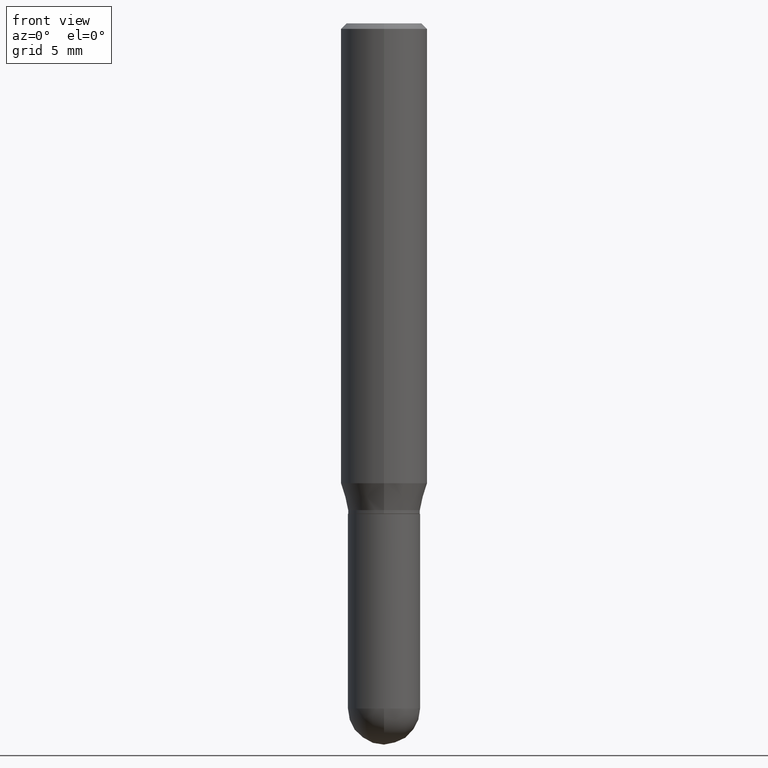
[diagram: clean part render]
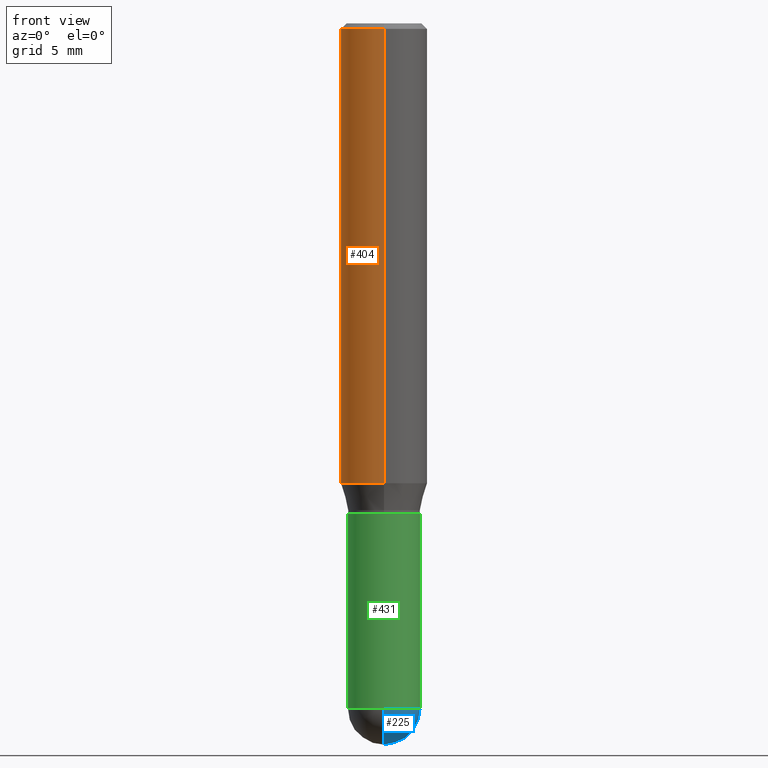
[diagram: same view with three faces highlighted in distinct colors, each labeled with its STEP entity id]
A machine part, front view with three faces highlighted in distinct colors.
Their STEP definitions:

[orange] entity #404 — the highlighted cylindrical surface (partial cylindrical patch) has radius 2.9997 mm, axis along (-0, 0, 1).
#8 = EDGE_CURVE ( 'NONE', #118, #463, #145, .T. ) ;
#61 = ORIENTED_EDGE ( 'NONE', *, *, #124, .F. ) ;
#95 = AXIS2_PLACEMENT_3D ( 'NONE', #200, #280, #286 ) ;
#99 = VERTEX_POINT ( 'NONE', #153 ) ;
#100 = CARTESIAN_POINT ( 'NONE',  ( -8.246878922347475723E-16, -0.1181000000000000522, -0.01499999999999973056 ) ) ;
#118 = VERTEX_POINT ( 'NONE', #462 ) ;
#120 = CARTESIAN_POINT ( 'NONE',  ( 8.391509709326781971E-16, 0.1180999999999999966, -4.123703489917239120E-16 ) ) ;
#122 = CYLINDRICAL_SURFACE ( 'NONE', #95, 0.1180999999999999966 ) ;
#124 = EDGE_CURVE ( 'NONE', #247, #99, #425, .T. ) ;
#125 = FACE_OUTER_BOUND ( 'NONE', #344, .T. ) ;
#129 = EDGE_CURVE ( 'NONE', #99, #463, #271, .T. ) ;
#130 = CARTESIAN_POINT ( 'NONE',  ( 3.069515929976998063E-29, -4.383015658542372764E-15, -1.255265201631271754 ) ) ;
#145 = LINE ( 'NONE', #305, #510 ) ;
#151 = DIRECTION ( 'NONE',  ( -2.445312692479667883E-29, 3.491704902554816982E-15, 1.000000000000000000 ) ) ;
#153 = CARTESIAN_POINT ( 'NONE',  ( 8.391509709327091599E-16, 0.1180999999999999411, -0.01500000000000055456 ) ) ;
#180 = DIRECTION ( 'NONE',  ( -2.445312692479667883E-29, 3.491704902554816982E-15, 1.000000000000000000 ) ) ;
#200 = CARTESIAN_POINT ( 'NONE',  ( 0.000000000000000000, 0.000000000000000000, 0.000000000000000000 ) ) ;
#219 = VECTOR ( 'NONE', #468, 39.37007874015748143 ) ;
#245 = DIRECTION ( 'NONE',  ( -2.445312692479667883E-29, 3.491704902554816982E-15, 1.000000000000000000 ) ) ;
#247 = VERTEX_POINT ( 'NONE', #362 ) ;
#252 = ORIENTED_EDGE ( 'NONE', *, *, #129, .F. ) ;
#271 = CIRCLE ( 'NONE', #360, 0.1180999999999999966 ) ;
#280 = DIRECTION ( 'NONE',  ( -2.445312692479667883E-29, 3.491704902554816982E-15, 1.000000000000000000 ) ) ;
#286 = DIRECTION ( 'NONE',  ( -6.982962677686265922E-15, -1.000000000000000000, 3.491704902554817376E-15 ) ) ;
#305 = CARTESIAN_POINT ( 'NONE',  ( -8.246878922347479668E-16, -0.1180999999999999966, 4.123703489917239120E-16 ) ) ;
#325 = EDGE_CURVE ( 'NONE', #247, #118, #399, .T. ) ;
#338 = AXIS2_PLACEMENT_3D ( 'NONE', #130, #245, #400 ) ;
#340 = ORIENTED_EDGE ( 'NONE', *, *, #8, .T. ) ;
#344 = EDGE_LOOP ( 'NONE', ( #61, #422, #340, #252 ) ) ;
#360 = AXIS2_PLACEMENT_3D ( 'NONE', #466, #151, #394 ) ;
#362 = CARTESIAN_POINT ( 'NONE',  ( 8.391509709327087654E-16, 0.1180999999999955974, -1.255265201631272420 ) ) ;
#394 = DIRECTION ( 'NONE',  ( -6.982962677686265922E-15, -1.000000000000000000, 3.487819265831411744E-15 ) ) ;
#399 = CIRCLE ( 'NONE', #338, 0.1180999999999999966 ) ;
#400 = DIRECTION ( 'NONE',  ( -6.982962677686265922E-15, -1.000000000000000000, 4.626330217890369336E-15 ) ) ;
#404 = ADVANCED_FACE ( 'NONE', ( #125 ), #122, .T. ) ;
#422 = ORIENTED_EDGE ( 'NONE', *, *, #325, .T. ) ;
#425 = LINE ( 'NONE', #120, #219 ) ;
#462 = CARTESIAN_POINT ( 'NONE',  ( -8.246878922347173984E-16, -0.1181000000000044098, -1.255265201631271310 ) ) ;
#463 = VERTEX_POINT ( 'NONE', #100 ) ;
#466 = CARTESIAN_POINT ( 'NONE',  ( 3.667969038719537049E-31, -5.237557353832276132E-17, -0.01500000000000014343 ) ) ;
#468 = DIRECTION ( 'NONE',  ( -2.445312692479667883E-29, 3.491704902554816982E-15, 1.000000000000000000 ) ) ;
#510 = VECTOR ( 'NONE', #180, 39.37007874015748143 ) ;

[blue] entity #225 — the highlighted spherical surface has radius 2.5006 mm.
#4 = VERTEX_POINT ( 'NONE', #377 ) ;
#12 = EDGE_CURVE ( 'NONE', #304, #364, #294, .T. ) ;
#13 = AXIS2_PLACEMENT_3D ( 'NONE', #268, #69, #491 ) ;
#18 = DIRECTION ( 'NONE',  ( -2.445468806185136597E-29, 3.491481338843145583E-15, 1.000000000000000000 ) ) ;
#48 = DIRECTION ( 'NONE',  ( 6.982962677686265922E-15, 1.000000000000000000, 0.000000000000000000 ) ) ;
#52 = EDGE_CURVE ( 'NONE', #498, #4, #464, .T. ) ;
#69 = DIRECTION ( 'NONE',  ( -1.000000000000000000, 7.105427357601001070E-15, -4.926315508542082329E-29 ) ) ;
#70 = AXIS2_PLACEMENT_3D ( 'NONE', #303, #18, #339 ) ;
#72 = ORIENTED_EDGE ( 'NONE', *, *, #346, .T. ) ;
#127 = CARTESIAN_POINT ( 'NONE',  ( 4.564729828889544053E-29, -6.541301325441230978E-15, -1.870050000000000212 ) ) ;
#128 = AXIS2_PLACEMENT_3D ( 'NONE', #127, #170, #48 ) ;
#137 = CIRCLE ( 'NONE', #156, 0.09844999999999999585 ) ;
#156 = AXIS2_PLACEMENT_3D ( 'NONE', #363, #171, #330 ) ;
#157 = FACE_OUTER_BOUND ( 'NONE', #301, .T. ) ;
#170 = DIRECTION ( 'NONE',  ( 1.000000000000000000, -6.982962677686265922E-15, 4.883557194083112340E-29 ) ) ;
#171 = DIRECTION ( 'NONE',  ( -2.445468806185136597E-29, 3.491481338843145583E-15, 1.000000000000000000 ) ) ;
#210 = CARTESIAN_POINT ( 'NONE',  ( 0.09844999999999999585, -6.288943474557743431E-15, -1.870050000000000212 ) ) ;
#225 = ADVANCED_FACE ( 'NONE', ( #157 ), #502, .T. ) ;
#230 = DIRECTION ( 'NONE',  ( -1.000000000000000000, 6.982962677686265922E-15, -4.883557194083112340E-29 ) ) ;
#264 = ORIENTED_EDGE ( 'NONE', *, *, #353, .F. ) ;
#267 = ORIENTED_EDGE ( 'NONE', *, *, #52, .F. ) ;
#268 = CARTESIAN_POINT ( 'NONE',  ( 4.564729828889544053E-29, -6.541301325441230978E-15, -1.870050000000000212 ) ) ;
#285 = DIRECTION ( 'NONE',  ( 6.982962677686265922E-15, 1.000000000000000000, -2.774858297271980348E-15 ) ) ;
#294 = CIRCLE ( 'NONE', #70, 0.09844999999999999585 ) ;
#301 = EDGE_LOOP ( 'NONE', ( #267, #72, #473, #264 ) ) ;
#303 = CARTESIAN_POINT ( 'NONE',  ( 4.573148941006514739E-29, -6.529244677703625427E-15, -1.870050000000000212 ) ) ;
#304 = VERTEX_POINT ( 'NONE', #210 ) ;
#311 = CARTESIAN_POINT ( 'NONE',  ( 4.564729828889544053E-29, -6.541301325441230978E-15, -1.870050000000000212 ) ) ;
#330 = DIRECTION ( 'NONE',  ( 1.000000000000000000, -6.982962677686265922E-15, 0.000000000000000000 ) ) ;
#339 = DIRECTION ( 'NONE',  ( 1.000000000000000000, -6.982962677686265922E-15, 0.000000000000000000 ) ) ;
#346 = EDGE_CURVE ( 'NONE', #498, #364, #493, .T. ) ;
#353 = EDGE_CURVE ( 'NONE', #4, #304, #137, .T. ) ;
#354 = AXIS2_PLACEMENT_3D ( 'NONE', #311, #230, #285 ) ;
#363 = CARTESIAN_POINT ( 'NONE',  ( 4.573148941006514739E-29, -6.529244677703625427E-15, -1.870050000000000212 ) ) ;
#364 = VERTEX_POINT ( 'NONE', #405 ) ;
#377 = CARTESIAN_POINT ( 'NONE',  ( -6.995293233557726523E-16, -0.09845000000000650453, -1.870049999999999990 ) ) ;
#405 = CARTESIAN_POINT ( 'NONE',  ( 6.874726756182583140E-16, 0.09844999999999343165, -1.870050000000000434 ) ) ;
#464 = CIRCLE ( 'NONE', #13, 0.09844999999999994034 ) ;
#473 = ORIENTED_EDGE ( 'NONE', *, *, #12, .F. ) ;
#490 = CARTESIAN_POINT ( 'NONE',  ( 4.809695788916955932E-29, -6.879009339381536060E-15, -1.968500000000000139 ) ) ;
#491 = DIRECTION ( 'NONE',  ( -7.105427357601001070E-15, -1.000000000000000000, 0.000000000000000000 ) ) ;
#493 = CIRCLE ( 'NONE', #128, 0.09844999999999994034 ) ;
#498 = VERTEX_POINT ( 'NONE', #490 ) ;
#502 = SPHERICAL_SURFACE ( 'NONE', #354, 0.09844999999999994034 ) ;

[green] entity #431 — the highlighted cylindrical surface (edge-blend (fillet) strip) has radius 2.5006 mm, axis along (-0, 0, 1).
#4 = VERTEX_POINT ( 'NONE', #377 ) ;
#9 = CARTESIAN_POINT ( 'NONE',  ( 0.09844999999999999585, -6.874726756182129545E-16, 4.800596035771099214E-30 ) ) ;
#20 = VERTEX_POINT ( 'NONE', #300 ) ;
#45 = CIRCLE ( 'NONE', #482, 0.09844999999999999585 ) ;
#60 = DIRECTION ( 'NONE',  ( -2.445468806185136597E-29, 3.491481338843145583E-15, 1.000000000000000000 ) ) ;
#66 = ORIENTED_EDGE ( 'NONE', *, *, #353, .T. ) ;
#86 = ORIENTED_EDGE ( 'NONE', *, *, #231, .T. ) ;
#90 = CYLINDRICAL_SURFACE ( 'NONE', #407, 0.09844999999999999585 ) ;
#98 = DIRECTION ( 'NONE',  ( -2.445468806185136877E-29, 3.491481338843145188E-15, 1.000000000000000000 ) ) ;
#104 = ORIENTED_EDGE ( 'NONE', *, *, #365, .T. ) ;
#119 = AXIS2_PLACEMENT_3D ( 'NONE', #430, #402, #323 ) ;
#137 = CIRCLE ( 'NONE', #156, 0.09844999999999999585 ) ;
#156 = AXIS2_PLACEMENT_3D ( 'NONE', #363, #171, #330 ) ;
#164 = VECTOR ( 'NONE', #98, 39.37007874015748143 ) ;
#171 = DIRECTION ( 'NONE',  ( -2.445468806185136597E-29, 3.491481338843145583E-15, 1.000000000000000000 ) ) ;
#176 = DIRECTION ( 'NONE',  ( -2.445468806185136877E-29, 3.491481338843145188E-15, 1.000000000000000000 ) ) ;
#179 = DIRECTION ( 'NONE',  ( -2.445468806185136597E-29, 3.491481338843145583E-15, 1.000000000000000000 ) ) ;
#210 = CARTESIAN_POINT ( 'NONE',  ( 0.09844999999999999585, -6.288943474557743431E-15, -1.870050000000000212 ) ) ;
#211 = CARTESIAN_POINT ( 'NONE',  ( -0.09844999999999999585, 6.995293233558186035E-16, -4.842691596355954042E-30 ) ) ;
#227 = EDGE_LOOP ( 'NONE', ( #503, #86, #66, #104, #348 ) ) ;
#231 = EDGE_CURVE ( 'NONE', #320, #4, #385, .T. ) ;
#242 = VERTEX_POINT ( 'NONE', #443 ) ;
#254 = CARTESIAN_POINT ( 'NONE',  ( -0.09844999999999999585, -4.901941475583711971E-15, -1.870050000000000212 ) ) ;
#257 = LINE ( 'NONE', #211, #164 ) ;
#290 = CARTESIAN_POINT ( 'NONE',  ( 3.273504543959423913E-29, -4.673696920175434737E-15, -1.338600000000000012 ) ) ;
#299 = CARTESIAN_POINT ( 'NONE',  ( 0.000000000000000000, 0.000000000000000000, 0.000000000000000000 ) ) ;
#300 = CARTESIAN_POINT ( 'NONE',  ( 0.09844999999999999585, -5.361169595793647297E-15, -1.338600000000000012 ) ) ;
#304 = VERTEX_POINT ( 'NONE', #210 ) ;
#320 = VERTEX_POINT ( 'NONE', #254 ) ;
#323 = DIRECTION ( 'NONE',  ( 1.000000000000000000, -6.982962677686265922E-15, 0.000000000000000000 ) ) ;
#330 = DIRECTION ( 'NONE',  ( 1.000000000000000000, -6.982962677686265922E-15, 0.000000000000000000 ) ) ;
#348 = ORIENTED_EDGE ( 'NONE', *, *, #439, .F. ) ;
#353 = EDGE_CURVE ( 'NONE', #4, #304, #137, .T. ) ;
#363 = CARTESIAN_POINT ( 'NONE',  ( 4.573148941006514739E-29, -6.529244677703625427E-15, -1.870050000000000212 ) ) ;
#365 = EDGE_CURVE ( 'NONE', #304, #20, #479, .T. ) ;
#377 = CARTESIAN_POINT ( 'NONE',  ( -6.995293233557726523E-16, -0.09845000000000650453, -1.870049999999999990 ) ) ;
#385 = CIRCLE ( 'NONE', #119, 0.09844999999999999585 ) ;
#402 = DIRECTION ( 'NONE',  ( -2.445468806185136597E-29, 3.491481338843145583E-15, 1.000000000000000000 ) ) ;
#406 = DIRECTION ( 'NONE',  ( 1.000000000000000000, -6.982962677686266711E-15, 4.876176775795936353E-29 ) ) ;
#407 = AXIS2_PLACEMENT_3D ( 'NONE', #299, #60, #406 ) ;
#430 = CARTESIAN_POINT ( 'NONE',  ( 4.573148941006514739E-29, -6.529244677703625427E-15, -1.870050000000000212 ) ) ;
#431 = ADVANCED_FACE ( 'NONE', ( #486 ), #90, .T. ) ;
#439 = EDGE_CURVE ( 'NONE', #242, #20, #45, .T. ) ;
#442 = EDGE_CURVE ( 'NONE', #320, #242, #257, .T. ) ;
#443 = CARTESIAN_POINT ( 'NONE',  ( -0.09844999999999999585, -4.901941475583711183E-15, -1.338600000000000012 ) ) ;
#444 = DIRECTION ( 'NONE',  ( 1.000000000000000000, -6.982962677686265922E-15, 0.000000000000000000 ) ) ;
#446 = VECTOR ( 'NONE', #176, 39.37007874015748143 ) ;
#479 = LINE ( 'NONE', #9, #446 ) ;
#482 = AXIS2_PLACEMENT_3D ( 'NONE', #290, #179, #444 ) ;
#486 = FACE_OUTER_BOUND ( 'NONE', #227, .T. ) ;
#503 = ORIENTED_EDGE ( 'NONE', *, *, #442, .F. ) ;